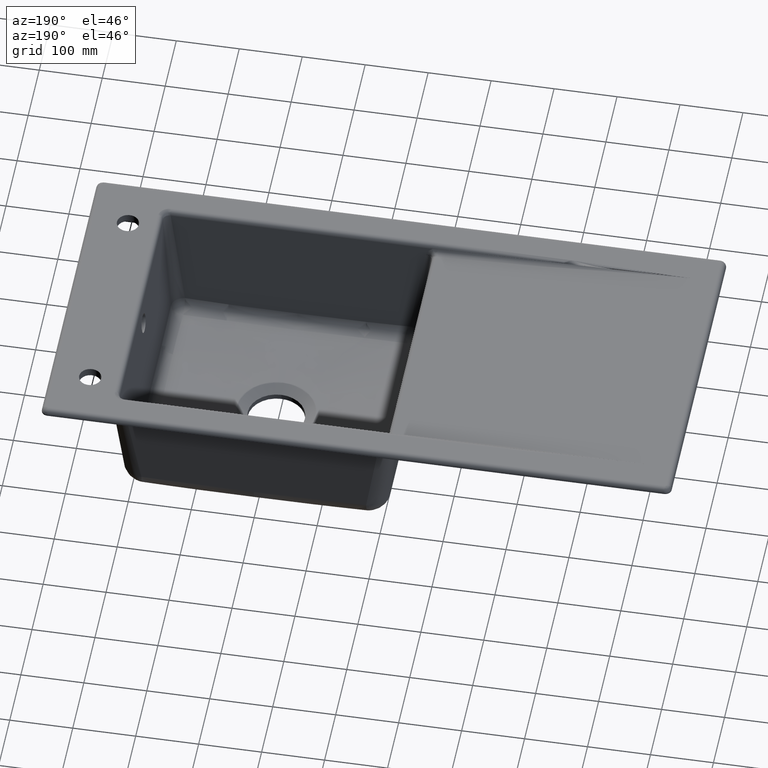
[diagram: clean part render]
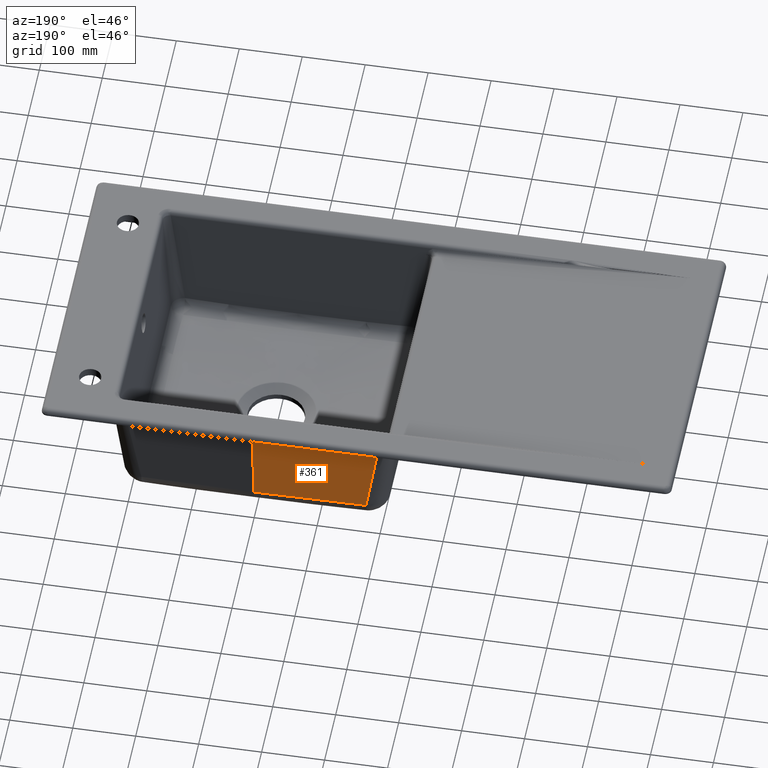
[diagram: same view with one face highlighted and labeled with its STEP entity id]
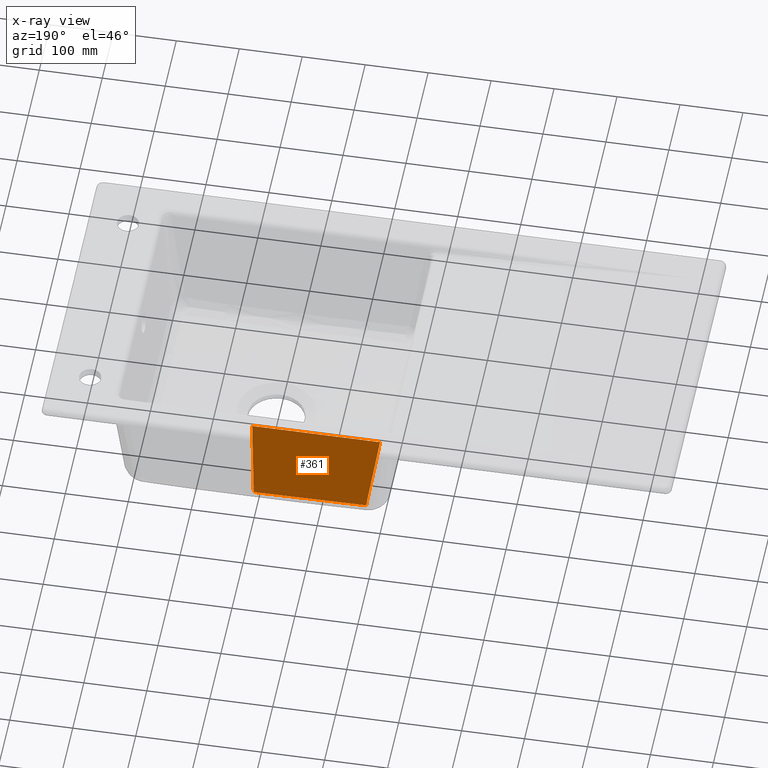
[diagram: x-ray of the same camera — body ghosted, the highlighted face saturated]
A machine part, auxiliary view. The second image highlights one B-rep face of the part: STEP entity #361.
The next image is the same camera in x-ray: the body ghosted, the highlighted face saturated — about 0% of this face is hidden behind the body in this view.
In plain terms, the highlighted planar face has unit normal (0, 0.9962, -0.0872).
Its self-contained STEP definition (entity closure, byte-faithful):
#361=ADVANCED_FACE('',(#600),#530,.T.);
#530=PLANE('',#3359);
#600=FACE_OUTER_BOUND('',#803,.T.);
#803=EDGE_LOOP('',(#1589,#1590,#1591,#1592,#1593,#1594,#1595,#1596));
#1103=B_SPLINE_CURVE_WITH_KNOTS('',3,(#9609,#9610,#9611,#9612,#9613,#9614,
#9615,#9616,#9617,#9618,#9619,#9620,#9621,#9622),.UNSPECIFIED.,.F.,.F.,
(4,2,2,2,2,2,4),(0.,0.199832710397667,0.39966607319763,0.599500413559746,
0.699416776390987,0.899252785760771,1.),.UNSPECIFIED.);
#1107=B_SPLINE_CURVE_WITH_KNOTS('',3,(#10839,#10840,#10841,#10842),
 .UNSPECIFIED.,.F.,.F.,(4,4),(0.,1.),.UNSPECIFIED.);
#1108=B_SPLINE_CURVE_WITH_KNOTS('',3,(#10850,#10851,#10852,#10853),
 .UNSPECIFIED.,.F.,.F.,(4,4),(0.,1.),.UNSPECIFIED.);
#1589=ORIENTED_EDGE('',*,*,#2606,.T.);
#1590=ORIENTED_EDGE('',*,*,#2754,.T.);
#1591=ORIENTED_EDGE('',*,*,#2788,.T.);
#1592=ORIENTED_EDGE('',*,*,#2792,.T.);
#1593=ORIENTED_EDGE('',*,*,#2793,.T.);
#1594=ORIENTED_EDGE('',*,*,#2794,.T.);
#1595=ORIENTED_EDGE('',*,*,#2795,.T.);
#1596=ORIENTED_EDGE('',*,*,#2796,.F.);
#2294=VERTEX_POINT('',#4201);
#2295=VERTEX_POINT('',#4203);
#2410=VERTEX_POINT('',#6644);
#2432=VERTEX_POINT('',#9608);
#2433=VERTEX_POINT('',#10843);
#2434=VERTEX_POINT('',#10845);
#2435=VERTEX_POINT('',#10847);
#2436=VERTEX_POINT('',#10849);
#2606=EDGE_CURVE('',#2295,#2294,#3082,.T.);
#2754=EDGE_CURVE('',#2294,#2410,#3122,.T.);
#2788=EDGE_CURVE('',#2410,#2432,#1103,.T.);
#2792=EDGE_CURVE('',#2432,#2433,#1107,.T.);
#2793=EDGE_CURVE('',#2433,#2434,#3123,.T.);
#2794=EDGE_CURVE('',#2434,#2435,#3124,.T.);
#2795=EDGE_CURVE('',#2435,#2436,#3125,.T.);
#2796=EDGE_CURVE('',#2295,#2436,#1108,.T.);
#3082=LINE('',#4202,#3201);
#3122=LINE('',#6645,#3241);
#3123=LINE('',#10844,#3242);
#3124=LINE('',#10846,#3243);
#3125=LINE('',#10848,#3244);
#3201=VECTOR('',#3521,1.);
#3241=VECTOR('',#3651,1.);
#3242=VECTOR('',#3662,1.);
#3243=VECTOR('',#3663,1.);
#3244=VECTOR('',#3664,1.);
#3359=AXIS2_PLACEMENT_3D('',#10854,#3665,#3666);
#3521=DIRECTION('',(1.,0.,0.));
#3651=DIRECTION('',(0.,-0.087155742747638,-0.996194698091747));
#3662=DIRECTION('',(-0.151099826163121,0.0861550648678153,0.984756897579853));
#3663=DIRECTION('',(-0.151099826167577,0.0861550648673461,0.98475689757921));
#3664=DIRECTION('',(-0.15109982617096,0.0861550648674908,0.984756897578679));
#3665=DIRECTION('',(0.,0.996194698091747,-0.087155742747638));
#3666=DIRECTION('',(0.,-0.087155742747638,-0.996194698091747));
#4201=CARTESIAN_POINT('',(0.,217.843247043021,-13.8330000003289));
#4202=CARTESIAN_POINT('',(240.,217.843247043021,-13.8330000003289));
#4203=CARTESIAN_POINT('',(-203.050315575288,217.843247043021,-13.8330000003289));
#6644=CARTESIAN_POINT('',(2.85312496752905E-8,203.57612796503,-176.906917271575));
#6645=CARTESIAN_POINT('',(0.,203.657297188774,-175.979148798765));
#9608=CARTESIAN_POINT('',(-178.39251286592,203.783703599837,-174.534316908908));
#9609=CARTESIAN_POINT('',(-5.3927869887069E-25,203.576127964998,-176.906917271901));
#9610=CARTESIAN_POINT('',(-11.8844107902665,203.576127965018,-176.906917271672));
#9611=CARTESIAN_POINT('',(-23.7688425497666,203.577094148879,-176.895873739604));
#9612=CARTESIAN_POINT('',(-47.537586239784,203.583111726034,-176.827092517992));
#9613=CARTESIAN_POINT('',(-59.4219530502639,203.5881685471,-176.769292788718));
#9614=CARTESIAN_POINT('',(-83.1901116179566,203.604537453113,-176.582195336852));
#9615=CARTESIAN_POINT('',(-95.0740155405345,203.615857874964,-176.452802323008));
#9616=CARTESIAN_POINT('',(-112.898717630177,203.639003953783,-176.188241431503));
#9617=CARTESIAN_POINT('',(-118.840109929948,203.647744490631,-176.088336638167));
#9618=CARTESIAN_POINT('',(-136.663611702662,203.677345123888,-175.749999851853));
#9619=CARTESIAN_POINT('',(-148.545131825145,203.701608707706,-175.472665819757));
#9620=CARTESIAN_POINT('',(-166.414061128647,203.74576357074,-174.967973425851));
#9621=CARTESIAN_POINT('',(-172.403736697748,203.760257414859,-174.802308029505));
#9622=CARTESIAN_POINT('',(-178.38999688785,203.78226902435,-174.550714181755));
#10839=CARTESIAN_POINT('',(-178.392512864251,203.783703599859,-174.534316908654));
#10840=CARTESIAN_POINT('',(-185.826520495106,208.022473596511,-126.084954147533));
#10841=CARTESIAN_POINT('',(-193.26052812596,212.261243593164,-77.6355913864121));
#10842=CARTESIAN_POINT('',(-200.694535756814,216.500013589816,-29.1862286252911));
#10843=CARTESIAN_POINT('',(-200.694535755796,216.500013589829,-29.186228625136));
#10844=CARTESIAN_POINT('',(-200.746014591227,216.529366120727,-28.850727661757));
#10845=CARTESIAN_POINT('',(-200.797493425261,216.558718651637,-28.5152266982365));
#10846=CARTESIAN_POINT('',(-201.447686981422,216.929450169967,-24.2777460534456));
#10847=CARTESIAN_POINT('',(-202.097880536324,217.300181688307,-20.0402654085345));
#10848=CARTESIAN_POINT('',(-202.522926120626,217.542536896375,-17.2701327044605));
#10849=CARTESIAN_POINT('',(-202.947971702467,217.784892104477,-14.5000000000119));
#10850=CARTESIAN_POINT('',(-203.050315322357,217.843247043021,-13.8330000003289));
#10851=CARTESIAN_POINT('',(-203.016200782924,217.823795396833,-14.0553333336375));
#10852=CARTESIAN_POINT('',(-202.982086243491,217.804343750644,-14.2776666669461));
#10853=CARTESIAN_POINT('',(-202.947971704058,217.784892104456,-14.5000000002547));
#10854=CARTESIAN_POINT('',(240.,203.657297188774,-175.979148798765));